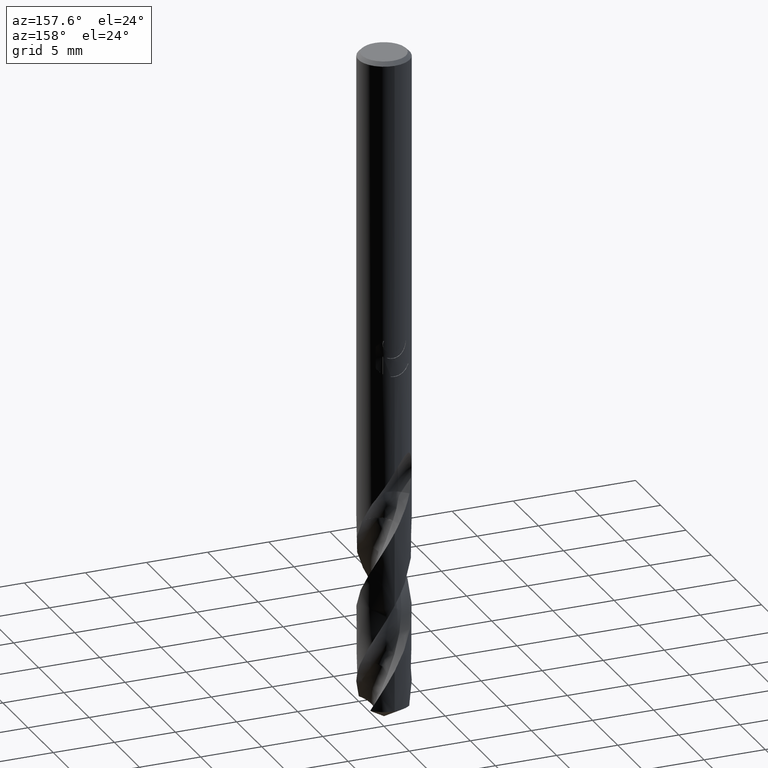
[diagram: clean part render]
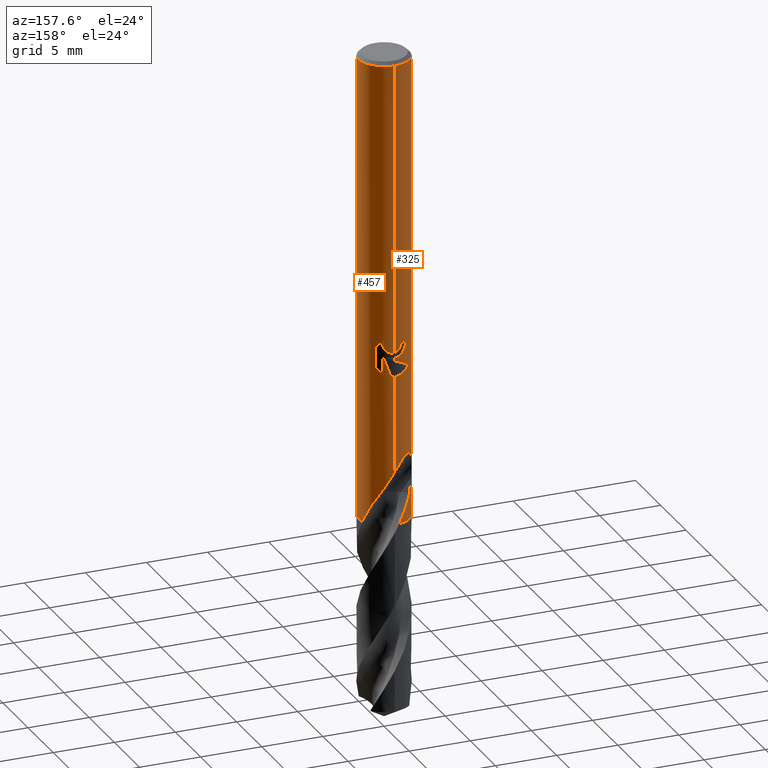
[diagram: same view with one multi-face feature highlighted, each face labeled with its STEP entity id]
A machine part, auxiliary view. The highlighted faces form ONE feature: a constant-radius fillet chain: 2 tangent blend faces with common blend radius 2.1 mm. The faces share edges in the B-rep.
Their STEP definitions:
[1] entity #325 (Cylinder):
#281=VERTEX_POINT('',#774);
#285=VERTEX_POINT('',#778);
#287=EDGE_CURVE('',#467,#303,#780,.T.);
#303=VERTEX_POINT('',#800);
#311=VERTEX_POINT('',#810);
#319=VERTEX_POINT('',#818);
#323=VERTEX_POINT('',#822);
#325=ADVANCED_FACE('',(#824),#825,.T.);
#365=EDGE_CURVE('',#627,#441,#871,.T.);
#415=EDGE_CURVE('',#285,#319,#925,.T.);
#427=VERTEX_POINT('',#938);
#437=EDGE_CURVE('',#319,#467,#948,.T.);
#441=VERTEX_POINT('',#952);
#463=EDGE_CURVE('',#623,#539,#976,.T.);
#467=VERTEX_POINT('',#981);
#471=VERTEX_POINT('',#985);
#483=VERTEX_POINT('',#998);
#499=EDGE_CURVE('',#311,#623,#1015,.T.);
#525=VERTEX_POINT('',#1044);
#529=EDGE_CURVE('',#697,#627,#1048,.T.);
#537=EDGE_CURVE('',#563,#525,#1057,.T.);
#539=VERTEX_POINT('',#1059);
#563=VERTEX_POINT('',#1084);
#569=EDGE_CURVE('',#303,#697,#1090,.T.);
#573=EDGE_CURVE('',#441,#483,#1094,.T.);
#579=EDGE_CURVE('',#525,#471,#1100,.T.);
#591=EDGE_CURVE('',#483,#563,#1112,.T.);
#623=VERTEX_POINT('',#1146);
#625=EDGE_CURVE('',#539,#281,#1148,.T.);
#627=VERTEX_POINT('',#1150);
#665=EDGE_CURVE('',#427,#285,#1194,.T.);
#697=VERTEX_POINT('',#1229);
#715=EDGE_CURVE('',#323,#311,#1247,.T.);
#723=EDGE_CURVE('',#281,#427,#1256,.T.);
#733=EDGE_CURVE('',#323,#471,#1267,.T.);
#774=CARTESIAN_POINT('',(0.0,2.1,-0.300000000000001));
#778=CARTESIAN_POINT('',(-0.486378944383048,2.0428988037739,-23.6432837483006));
#780=B_SPLINE_CURVE_WITH_KNOTS('',3,(#1375,#1376,#1377,#1378,#1379,#1380,#1381,#1382,#1383,#1384,#1385,#1386,#1387,#1388,#1389,#1390,#1391,#1392,#1393,#1394),.UNSPECIFIED.,.F.,.F.,(4,2,2,2,2,2,2,2,2,4),(3.44245235759393,3.66971413200713,3.89807537852471,4.12643662504229,4.58315911807744,5.03339285897156,5.25850972941862,5.48362659986569,5.71673441816734,5.94984223646899),.UNSPECIFIED.);
#800=CARTESIAN_POINT('',(0.0,2.1,-24.5000801551881));
#810=CARTESIAN_POINT('',(-1.33815477037532,-1.61843807744435,-36.1802));
#818=CARTESIAN_POINT('',(-0.562333990228013,2.02330929010723,-23.3171221986971));
#822=CARTESIAN_POINT('',(-2.02251495268167,-0.56518427630204,-38.3));
#824=FACE_OUTER_BOUND('',#2734,.T.);
#825=CYLINDRICAL_SURFACE('',#2735,2.1);
#871=B_SPLINE_CURVE_WITH_KNOTS('',3,(#3377,#3378,#3379,#3380,#3381,#3382,#3383,#3384,#3385,#3386,#3387,#3388,#3389,#3390),.UNSPECIFIED.,.F.,.F.,(4,2,2,2,2,2,4),(6.2236791813652,6.55587058870317,6.87999530281329,7.20412001692342,7.52824473103354,7.85236944514366,8.17313605415779),.UNSPECIFIED.);
#925=B_SPLINE_CURVE_WITH_KNOTS('',3,(#3713,#3714,#3715,#3716,#3717,#3718,#3719,#3720,#3721,#3722,#3723,#3724,#3725,#3726,#3727,#3728,#3729,#3730,#3731,#3732,#3733,#3734,#3735,#3736,#3737,#3738,#3739),.UNSPECIFIED.,.F.,.F.,(4,2,3,2,2,2,2,2,2,2,2,2,4),(-0.547486883548117,-0.273743441774058,0.0,0.273743441774058,0.547486883548117,0.824340682369287,1.10119448119046,1.3723600496363,1.64352561808214,1.91635832268472,2.1891910272873,2.46202373188988,2.73485643649247),.UNSPECIFIED.);
#938=CARTESIAN_POINT('',(-2.60338784749601E-016,2.1,-24.0232688117743));
#948=CIRCLE('',#3888,2.1);
#952=CARTESIAN_POINT('',(-2.17418747032393E-016,2.1,-26.0310253601033));
#976=LINE('',#4087,#4088);
#981=CARTESIAN_POINT('',(-1.0350734039088,1.82718993225134,-23.3171221986971));
#985=CARTESIAN_POINT('',(-0.393009290964015,2.06289691870824,-38.3));
#998=CARTESIAN_POINT('',(-6.18744852988289E-013,2.1,-33.9479410024608));
#1015=B_SPLINE_CURVE_WITH_KNOTS('',3,(#4149,#4150,#4151,#4152,#4153,#4154,#4155,#4156,#4157,#4158,#4159,#4160,#4161,#4162,#4163,#4164,#4165,#4166,#4167,#4168,#4169,#4170,#4171,#4172,#4173,#4174,#4175,#4176),.UNSPECIFIED.,.F.,.F.,(4,2,2,2,2,2,2,2,2,2,2,2,2,4),(0.0,1.02888532896578,1.59067981980449,2.09952440587855,2.69067965646268,3.40079201297187,4.01625864061398,4.29516669491358,4.49901449328071,4.69191413392008,4.93661883013172,5.29463172899718,5.80358915694652,6.38235072285999),.UNSPECIFIED.);
#1044=CARTESIAN_POINT('',(-1.45966241949301,1.50976343217068,-36.1802));
#1048=ELLIPSE('',#4596,2.34134970729001,2.1);
#1057=B_SPLINE_CURVE_WITH_KNOTS('',3,(#4634,#4635,#4636,#4637),.UNSPECIFIED.,.F.,.F.,(4,4),(0.0,1.20691179115769),.UNSPECIFIED.);
#1059=CARTESIAN_POINT('',(2.57167334302699E-016,-2.1,-0.300000000000001));
#1084=CARTESIAN_POINT('',(-1.70864854291025,1.22086860751298,-35.0302815210883));
#1090=LINE('',#4816,#4817);
#1094=LINE('',#4836,#4837);
#1100=B_SPLINE_CURVE_WITH_KNOTS('',3,(#4854,#4855,#4856,#4857,#4858,#4859,#4860,#4861),.UNSPECIFIED.,.F.,.F.,(4,2,2,4),(0.0,0.507593382815486,0.963422555044344,2.20962213593458),.UNSPECIFIED.);
#1112=B_SPLINE_CURVE_WITH_KNOTS('',3,(#4936,#4937,#4938,#4939,#4940,#4941,#4942,#4943,#4944,#4945,#4946,#4947,#4948,#4949,#4950,#4951,#4952,#4953,#4954,#4955,#4956,#4957,#4958,#4959,#4960,#4961,#4962,#4963),.UNSPECIFIED.,.F.,.F.,(4,2,2,2,2,2,2,2,2,2,2,2,2,4),(0.0,1.02888532896577,1.59067981980442,2.09952440587844,2.69067965646283,3.40079201297238,4.01625864061483,4.29516669491445,4.49901449328158,4.69191413392099,4.93661883013278,5.29463172899841,5.80358915694843,6.38235072286298),.UNSPECIFIED.);
#1146=CARTESIAN_POINT('',(6.23962901204027E-013,-2.1,-33.9479410024607));
#1148=CIRCLE('',#5210,2.1);
#1150=CARTESIAN_POINT('',(-1.337052752443,1.61934861508713,-25.3720803908795));
#1194=B_SPLINE_CURVE_WITH_KNOTS('',3,(#6290,#6291,#6292,#6293,#6294,#6295,#6296,#6297,#6298,#6299,#6300,#6301,#6302,#6303,#6304,#6305,#6306,#6307,#6308,#6309,#6310,#6311,#6312,#6313,#6314,#6315,#6316),.UNSPECIFIED.,.F.,.F.,(4,2,3,2,2,2,2,2,2,2,2,2,4),(-0.547486883548117,-0.273743441774058,0.0,0.273743441774058,0.547486883548117,0.824340682369287,1.10119448119046,1.3723600496363,1.64352561808214,1.91635832268472,2.1891910272873,2.46202373188988,2.73485643649247),.UNSPECIFIED.);
#1229=CARTESIAN_POINT('',(-2.57167334302699E-016,2.1,-24.7128911336578));
#1247=B_SPLINE_CURVE_WITH_KNOTS('',3,(#6547,#6548,#6549,#6550,#6551,#6552,#6553,#6554),.UNSPECIFIED.,.F.,.F.,(4,2,2,4),(0.0,1.24536084451384,2.05906868394917,3.64052375906592),.UNSPECIFIED.);
#1256=LINE('',#6566,#6567);
#1267=CIRCLE('',#6653,2.1);
#1375=CARTESIAN_POINT('',(-1.01244514746577,1.83982467191116,-23.0958412503617));
#1376=CARTESIAN_POINT('',(-1.0277194156161,1.83141932843821,-23.1727494274563));
#1377=CARTESIAN_POINT('',(-1.03510901790186,1.82716975704455,-23.2505479359284));
#1378=CARTESIAN_POINT('',(-1.03510901790186,1.82716975704455,-23.4024222762386));
#1379=CARTESIAN_POINT('',(-1.02764805011968,1.83146088002703,-23.4805792435279));
#1380=CARTESIAN_POINT('',(-0.996821623233596,1.84841989816034,-23.6350585553046));
#1381=CARTESIAN_POINT('',(-0.973469174635286,1.86105595241941,-23.7113869896211));
#1382=CARTESIAN_POINT('',(-0.881725044411464,1.90715655609605,-23.9299317026801));
#1383=CARTESIAN_POINT('',(-0.790532309968498,1.94868728807658,-24.0616569596424));
#1384=CARTESIAN_POINT('',(-0.582166475037412,2.0206578132057,-24.2685398871852));
#1385=CARTESIAN_POINT('',(-0.450812194775423,2.05627536214621,-24.3586750603355));
#1386=CARTESIAN_POINT('',(-0.233212600470114,2.08829760462997,-24.4490326341542));
#1387=CARTESIAN_POINT('',(-0.157287900701515,2.09550316953132,-24.4719737155572));
#1388=CARTESIAN_POINT('',(-0.00412991297262745,2.10139381388734,-24.5021454938052));
#1389=CARTESIAN_POINT('',(0.0731052752199256,2.10006820455313,-24.5093686300866));
#1390=CARTESIAN_POINT('',(0.225467257488821,2.08930663398059,-24.5093686300866));
#1391=CARTESIAN_POINT('',(0.304700531040774,2.07928928619,-24.501633853454));
#1392=CARTESIAN_POINT('',(0.460618703219946,2.05039429365853,-24.4700748807234));
#1393=CARTESIAN_POINT('',(0.5373083764591,2.03152615423531,-24.4462655734621));
#1394=CARTESIAN_POINT('',(0.610172878985177,2.00940017362171,-24.4153400403338));
#2734=EDGE_LOOP('',(#6920,#6921,#6922,#6923,#6924,#6925,#6926,#6927,#6928,#6929,#6930,#6931,#6932,#6933,#6934,#6935,#6936));
#2735=AXIS2_PLACEMENT_3D('',#6937,#6938,#6939);
#3377=CARTESIAN_POINT('',(-1.37634745487212,1.58608564821293,-25.3166558378059));
#3378=CARTESIAN_POINT('',(-1.31787524086667,1.63682570971602,-25.4028872848481));
#3379=CARTESIAN_POINT('',(-1.25189718961466,1.68820084151887,-25.4821776042087));
#3380=CARTESIAN_POINT('',(-1.11263821810976,1.78296273742365,-25.6217782046261));
#3381=CARTESIAN_POINT('',(-1.03440325687689,1.83012565693818,-25.6876600944075));
#3382=CARTESIAN_POINT('',(-0.861844859223899,1.91743929675964,-25.8057416776482));
#3383=CARTESIAN_POINT('',(-0.767506845901151,1.95755704477349,-25.8579444472577));
#3384=CARTESIAN_POINT('',(-0.567758594908759,2.02453614883448,-25.9431892571598));
#3385=CARTESIAN_POINT('',(-0.462122116208028,2.051441729542,-25.97630247802));
#3386=CARTESIAN_POINT('',(-0.246443350285201,2.08835717616504,-26.020354143173));
#3387=CARTESIAN_POINT('',(-0.136393886524362,2.09834927713736,-26.0312723335086));
#3388=CARTESIAN_POINT('',(0.0785502815617808,2.10125253379073,-26.0312723335086));
#3389=CARTESIAN_POINT('',(0.187753769356181,2.09439313010985,-26.0205746135546));
#3390=CARTESIAN_POINT('',(0.295003482813938,2.07917602552734,-25.9988480127898));
#3713=CARTESIAN_POINT('',(0.666458482238536,1.99143995426734,-22.8149370306263));
#3714=CARTESIAN_POINT('',(0.729057257127367,1.97049054807862,-22.8779344854065));
#3715=CARTESIAN_POINT('',(0.78378811914031,1.94865511636272,-22.9577429205161));
#3716=CARTESIAN_POINT('',(0.856983777968947,1.91759210564186,-23.1339210750639));
#3717=CARTESIAN_POINT('',(0.875400981188567,1.90884077967077,-23.2303941986621));
#3718=CARTESIAN_POINT('',(0.875400981188567,1.90884077967077,-23.3216420125868));
#3719=CARTESIAN_POINT('',(0.875400981188567,1.90884077967077,-23.4128898265115));
#3720=CARTESIAN_POINT('',(0.856983777968945,1.91759210564186,-23.5093629501097));
#3721=CARTESIAN_POINT('',(0.783788119140307,1.94865511636272,-23.6855411046574));
#3722=CARTESIAN_POINT('',(0.729057257127368,1.97049054807862,-23.765349539767));
#3723=CARTESIAN_POINT('',(0.603148440846462,2.01262739404237,-23.8920602457541));
#3724=CARTESIAN_POINT('',(0.52291830652937,2.03586892363889,-23.9475581518068));
#3725=CARTESIAN_POINT('',(0.345662776470217,2.07333621875243,-24.0218144874727));
#3726=CARTESIAN_POINT('',(0.248554282106599,2.08727986052927,-24.0405166027747));
#3727=CARTESIAN_POINT('',(0.0663893023608441,2.10089565318908,-24.0405166027747));
#3728=CARTESIAN_POINT('',(-0.0298354346062466,2.10165355609278,-24.0224982400753));
#3729=CARTESIAN_POINT('',(-0.206617574437343,2.09168520610069,-23.949381318464));
#3730=CARTESIAN_POINT('',(-0.287200738976719,2.08126758963178,-23.8943032978026));
#3731=CARTESIAN_POINT('',(-0.414760776704933,2.05965624300593,-23.767248366845));
#3732=CARTESIAN_POINT('',(-0.470244550788805,2.04702617545092,-23.686553093691));
#3733=CARTESIAN_POINT('',(-0.544049387122763,2.02865877404118,-23.5092464433082));
#3734=CARTESIAN_POINT('',(-0.562348199187247,2.02330534098807,-23.4125862474543));
#3735=CARTESIAN_POINT('',(-0.562348199187247,2.02330534098807,-23.2306977777193));
#3736=CARTESIAN_POINT('',(-0.544049387122763,2.02865877404118,-23.1340375818654));
#3737=CARTESIAN_POINT('',(-0.470244550788805,2.04702617545092,-22.9567309314826));
#3738=CARTESIAN_POINT('',(-0.414760776704934,2.05965624300593,-22.8760356583286));
#3739=CARTESIAN_POINT('',(-0.350785297706495,2.0704950313664,-22.8123135066901));
#3888=AXIS2_PLACEMENT_3D('',#7064,#7065,#7066);
#4087=CARTESIAN_POINT('',(2.57167334302699E-016,-2.1,-33.15));
#4088=VECTOR('',#7099,1.0);
#4149=CARTESIAN_POINT('',(-1.33815477037532,-1.61843807744435,-36.1802));
#4150=CARTESIAN_POINT('',(-1.19963090189851,-1.73297219400802,-35.8881112223602));
#4151=CARTESIAN_POINT('',(-1.04035972081438,-1.834785085847,-35.6157904295779));
#4152=CARTESIAN_POINT('',(-0.762638208962339,-1.95957807725862,-35.1608597650517));
#4153=CARTESIAN_POINT('',(-0.662701086433434,-1.99547625780557,-35.0008000391549));
#4154=CARTESIAN_POINT('',(-0.469235431953876,-2.04912734544822,-34.6909657977839));
#4155=CARTESIAN_POINT('',(-0.376570734134232,-2.06808215024568,-34.5426354971455));
#4156=CARTESIAN_POINT('',(-0.175990679085837,-2.09543863683843,-34.2229442145823));
#4157=CARTESIAN_POINT('',(-0.0663998889054547,-2.10186119944241,-34.0490808548331));
#4158=CARTESIAN_POINT('',(0.176973125026402,-2.09674199259401,-33.677129812363));
#4159=CARTESIAN_POINT('',(0.321268696880061,-2.08090824141791,-33.465485616075));
#4160=CARTESIAN_POINT('',(0.599524068126656,-2.01696391842214,-33.116498906123));
#4161=CARTESIAN_POINT('',(0.7534716760137,-1.96824639555499,-32.9462069951458));
#4162=CARTESIAN_POINT('',(0.98646980318537,-1.8556373455113,-32.7867458653066));
#4163=CARTESIAN_POINT('',(1.06359366909528,-1.81312487038635,-32.7473366637846));
#4164=CARTESIAN_POINT('',(1.19873242122968,-1.72559062949754,-32.7170633184468));
#4165=CARTESIAN_POINT('',(1.25416041542417,-1.68572687573651,-32.7164980346548));
#4166=CARTESIAN_POINT('',(1.3573980505889,-1.60361585924015,-32.7429934880568));
#4167=CARTESIAN_POINT('',(1.40254904203296,-1.5639578749058,-32.767835336699));
#4168=CARTESIAN_POINT('',(1.49443080912874,-1.47705049532201,-32.8455626312415));
#4169=CARTESIAN_POINT('',(1.53693947345426,-1.43201290614732,-32.9029502600879));
#4170=CARTESIAN_POINT('',(1.62401096383942,-1.33367002680633,-33.0600954158963));
#4171=CARTESIAN_POINT('',(1.66562940042639,-1.28011528983812,-33.1766506863448));
#4172=CARTESIAN_POINT('',(1.74389133327145,-1.17257804110451,-33.5027593615221));
#4173=CARTESIAN_POINT('',(1.7721848346708,-1.12677233329937,-33.7350095812939));
#4174=CARTESIAN_POINT('',(1.79027549176488,-1.09783577125529,-34.290276149154));
#4175=CARTESIAN_POINT('',(1.7774570783939,-1.12456864274165,-34.6389185240585));
#4176=CARTESIAN_POINT('',(1.70864854291025,-1.22086860751298,-35.0302815210883));
#4596=AXIS2_PLACEMENT_3D('',#7158,#7159,#7160);
#4634=CARTESIAN_POINT('',(-1.70864854296286,1.22086860743934,-35.0302815211173));
#4635=CARTESIAN_POINT('',(-1.64094627385653,1.31562031352706,-35.4153619923895));
#4636=CARTESIAN_POINT('',(-1.55934694363187,1.41338690682238,-35.8027340616366));
#4637=CARTESIAN_POINT('',(-1.45966241949301,1.50976343217068,-36.1802));
#4816=CARTESIAN_POINT('',(-2.57167334302699E-016,2.1,-33.15));
#4817=VECTOR('',#7200,1.0);
#4836=CARTESIAN_POINT('',(-2.57167334302699E-016,2.1,-33.15));
#4837=VECTOR('',#7201,1.0);
#4854=CARTESIAN_POINT('',(-1.45966241949301,1.50976343217068,-36.1802));
#4855=CARTESIAN_POINT('',(-1.40199727783578,1.56551497469598,-36.32917781892));
#4856=CARTESIAN_POINT('',(-1.33928548005667,1.61998597551167,-36.4792455753143));
#4857=CARTESIAN_POINT('',(-1.20361034611491,1.72273214507769,-36.7705115337178));
#4858=CARTESIAN_POINT('',(-1.13527988959609,1.76883534095848,-36.9085708864237));
#4859=CARTESIAN_POINT('',(-0.853542040764799,1.93353598549568,-37.4701929239469));
#4860=CARTESIAN_POINT('',(-0.627895218683887,2.01814802647158,-37.8861008632337));
#4861=CARTESIAN_POINT('',(-0.39300929096402,2.06289691870824,-38.3));
#4936=CARTESIAN_POINT('',(1.33815477037532,1.61843807744435,-36.1802));
#4937=CARTESIAN_POINT('',(1.19963090189851,1.73297219400802,-35.8881112223602));
#4938=CARTESIAN_POINT('',(1.04035972081438,1.834785085847,-35.6157904295779));
#4939=CARTESIAN_POINT('',(0.76263820896235,1.95957807725861,-35.1608597650517));
#4940=CARTESIAN_POINT('',(0.662701086433457,1.99547625780557,-35.0008000391549));
#4941=CARTESIAN_POINT('',(0.469235431953853,2.04912734544822,-34.6909657977839));
#4942=CARTESIAN_POINT('',(0.376570734134182,2.06808215024568,-34.5426354971455));
#4943=CARTESIAN_POINT('',(0.175990679085838,2.09543863683843,-34.2229442145823));
#4944=CARTESIAN_POINT('',(0.0663998889054543,2.10186119944241,-34.0490808548331));
#4945=CARTESIAN_POINT('',(-0.176973125026412,2.096741992594,-33.677129812363));
#4946=CARTESIAN_POINT('',(-0.321268696880063,2.0809082414179,-33.465485616075));
#4947=CARTESIAN_POINT('',(-0.59952406812666,2.01696391842214,-33.116498906123));
#4948=CARTESIAN_POINT('',(-0.753471676013701,1.96824639555499,-32.9462069951458));
#4949=CARTESIAN_POINT('',(-0.986469803185335,1.85563734551132,-32.7867458653066));
#4950=CARTESIAN_POINT('',(-1.06359366909527,1.81312487038636,-32.7473366637846));
#4951=CARTESIAN_POINT('',(-1.19873242122968,1.72559062949754,-32.7170633184468));
#4952=CARTESIAN_POINT('',(-1.25416041542417,1.68572687573651,-32.7164980346548));
#4953=CARTESIAN_POINT('',(-1.35739805058891,1.60361585924014,-32.7429934880568));
#4954=CARTESIAN_POINT('',(-1.40254904203298,1.56395787490578,-32.767835336699));
#4955=CARTESIAN_POINT('',(-1.49443080912873,1.47705049532202,-32.8455626312414));
#4956=CARTESIAN_POINT('',(-1.53693947345424,1.43201290614734,-32.9029502600879));
#4957=CARTESIAN_POINT('',(-1.62401096383944,1.3336700268063,-33.0600954158963));
#4958=CARTESIAN_POINT('',(-1.6656294004264,1.2801152898381,-33.1766506863449));
#4959=CARTESIAN_POINT('',(-1.74389133327146,1.17257804110449,-33.5027593615222));
#4960=CARTESIAN_POINT('',(-1.7721848346708,1.12677233329937,-33.735009581294));
#4961=CARTESIAN_POINT('',(-1.79027549176488,1.09783577125529,-34.2902761491541));
#4962=CARTESIAN_POINT('',(-1.77745707839389,1.12456864274167,-34.6389185240586));
#4963=CARTESIAN_POINT('',(-1.70864854291025,1.22086860751298,-35.0302815210883));
#5210=AXIS2_PLACEMENT_3D('',#7223,#7224,#7225);
#6290=CARTESIAN_POINT('',(0.666458482238536,1.99143995426734,-22.8149370306263));
#6291=CARTESIAN_POINT('',(0.729057257127367,1.97049054807862,-22.8779344854065));
#6292=CARTESIAN_POINT('',(0.78378811914031,1.94865511636272,-22.9577429205161));
#6293=CARTESIAN_POINT('',(0.856983777968947,1.91759210564186,-23.1339210750639));
#6294=CARTESIAN_POINT('',(0.875400981188567,1.90884077967077,-23.2303941986621));
#6295=CARTESIAN_POINT('',(0.875400981188567,1.90884077967077,-23.3216420125868));
#6296=CARTESIAN_POINT('',(0.875400981188567,1.90884077967077,-23.4128898265115));
#6297=CARTESIAN_POINT('',(0.856983777968945,1.91759210564186,-23.5093629501097));
#6298=CARTESIAN_POINT('',(0.783788119140307,1.94865511636272,-23.6855411046574));
#6299=CARTESIAN_POINT('',(0.729057257127368,1.97049054807862,-23.765349539767));
#6300=CARTESIAN_POINT('',(0.603148440846462,2.01262739404237,-23.8920602457541));
#6301=CARTESIAN_POINT('',(0.52291830652937,2.03586892363889,-23.9475581518068));
#6302=CARTESIAN_POINT('',(0.345662776470217,2.07333621875243,-24.0218144874727));
#6303=CARTESIAN_POINT('',(0.248554282106599,2.08727986052927,-24.0405166027747));
#6304=CARTESIAN_POINT('',(0.0663893023608441,2.10089565318908,-24.0405166027747));
#6305=CARTESIAN_POINT('',(-0.0298354346062466,2.10165355609278,-24.0224982400753));
#6306=CARTESIAN_POINT('',(-0.206617574437343,2.09168520610069,-23.949381318464));
#6307=CARTESIAN_POINT('',(-0.287200738976719,2.08126758963178,-23.8943032978026));
#6308=CARTESIAN_POINT('',(-0.414760776704933,2.05965624300593,-23.767248366845));
#6309=CARTESIAN_POINT('',(-0.470244550788805,2.04702617545092,-23.686553093691));
#6310=CARTESIAN_POINT('',(-0.544049387122763,2.02865877404118,-23.5092464433082));
#6311=CARTESIAN_POINT('',(-0.562348199187247,2.02330534098807,-23.4125862474543));
#6312=CARTESIAN_POINT('',(-0.562348199187247,2.02330534098807,-23.2306977777193));
#6313=CARTESIAN_POINT('',(-0.544049387122763,2.02865877404118,-23.1340375818654));
#6314=CARTESIAN_POINT('',(-0.470244550788805,2.04702617545092,-22.9567309314826));
#6315=CARTESIAN_POINT('',(-0.414760776704934,2.05965624300593,-22.8760356583286));
#6316=CARTESIAN_POINT('',(-0.350785297706495,2.0704950313664,-22.8123135066901));
#6547=CARTESIAN_POINT('',(-2.02251495268167,-0.565184276302042,-38.3));
#6548=CARTESIAN_POINT('',(-1.96671785135952,-0.764854501522574,-37.940356658951));
#6549=CARTESIAN_POINT('',(-1.88418592833998,-0.949897187140451,-37.6064049169185));
#6550=CARTESIAN_POINT('',(-1.70183679515044,-1.23769103387922,-36.9961769217155));
#6551=CARTESIAN_POINT('',(-1.63942891825156,-1.31351367678905,-36.8085724274032));
#6552=CARTESIAN_POINT('',(-1.53456721804123,-1.43756966949237,-36.5190914422499));
#6553=CARTESIAN_POINT('',(-1.44814190512114,-1.52749866425875,-36.345444376352));
#6554=CARTESIAN_POINT('',(-1.33815477037532,-1.61843807744435,-36.1802));
#6566=CARTESIAN_POINT('',(-2.57167334302699E-016,2.1,-33.15));
#6567=VECTOR('',#7342,1.0);
#6653=AXIS2_PLACEMENT_3D('',#7352,#7353,#7354);
#6920=ORIENTED_EDGE('',*,*,#723,.T.);
#6921=ORIENTED_EDGE('',*,*,#665,.T.);
#6922=ORIENTED_EDGE('',*,*,#415,.T.);
#6923=ORIENTED_EDGE('',*,*,#437,.T.);
#6924=ORIENTED_EDGE('',*,*,#287,.T.);
#6925=ORIENTED_EDGE('',*,*,#569,.T.);
#6926=ORIENTED_EDGE('',*,*,#529,.T.);
#6927=ORIENTED_EDGE('',*,*,#365,.T.);
#6928=ORIENTED_EDGE('',*,*,#573,.T.);
#6929=ORIENTED_EDGE('',*,*,#591,.T.);
#6930=ORIENTED_EDGE('',*,*,#537,.T.);
#6931=ORIENTED_EDGE('',*,*,#579,.T.);
#6932=ORIENTED_EDGE('',*,*,#733,.F.);
#6933=ORIENTED_EDGE('',*,*,#715,.T.);
#6934=ORIENTED_EDGE('',*,*,#499,.T.);
#6935=ORIENTED_EDGE('',*,*,#463,.T.);
#6936=ORIENTED_EDGE('',*,*,#625,.T.);
#6937=CARTESIAN_POINT('',(0.0,0.0,-33.15));
#6938=DIRECTION('',(-0.0,-0.0,1.0));
#6939=DIRECTION('',(0.0,1.0,0.0));
#7064=CARTESIAN_POINT('',(0.0,0.0,-23.3171221986971));
#7065=DIRECTION('',(0.0,-0.0,1.0));
#7066=DIRECTION('',(0.0,1.0,0.0));
#7099=DIRECTION('',(-0.0,-0.0,1.0));
#7158=CARTESIAN_POINT('',(0.0,0.0,-24.7128911336578));
#7159=DIRECTION('',(-0.442195774284071,0.0,0.896918556617774));
#7160=DIRECTION('',(0.896918556617774,-0.0,0.442195774284071));
#7200=DIRECTION('',(0.0,0.0,-1.0));
#7201=DIRECTION('',(0.0,0.0,-1.0));
#7223=CARTESIAN_POINT('',(0.0,0.0,-0.300000000000001));
#7224=DIRECTION('',(0.0,0.0,-1.0));
#7225=DIRECTION('',(0.0,1.0,0.0));
#7342=DIRECTION('',(0.0,0.0,-1.0));
#7352=CARTESIAN_POINT('',(0.0,0.0,-38.3));
#7353=DIRECTION('',(0.0,0.0,-1.0));
#7354=DIRECTION('',(0.0,1.0,0.0));
[2] entity #457 (Cylinder):
#281=VERTEX_POINT('',#774);
#283=VERTEX_POINT('',#776);
#333=EDGE_CURVE('',#335,#427,#835,.T.);
#335=VERTEX_POINT('',#837);
#369=VERTEX_POINT('',#875);
#375=EDGE_CURVE('',#583,#557,#882,.T.);
#407=VERTEX_POINT('',#917);
#411=EDGE_CURVE('',#623,#583,#921,.T.);
#413=EDGE_CURVE('',#281,#539,#923,.T.);
#423=EDGE_CURVE('',#635,#407,#934,.T.);
#427=VERTEX_POINT('',#938);
#441=VERTEX_POINT('',#952);
#457=ADVANCED_FACE('',(#969),#970,.T.);
#463=EDGE_CURVE('',#623,#539,#976,.T.);
#483=VERTEX_POINT('',#998);
#503=EDGE_CURVE('',#699,#283,#1020,.T.);
#507=EDGE_CURVE('',#369,#335,#1024,.T.);
#513=VERTEX_POINT('',#1030);
#523=EDGE_CURVE('',#513,#601,#1042,.T.);
#539=VERTEX_POINT('',#1059);
#543=EDGE_CURVE('',#567,#483,#1063,.T.);
#547=EDGE_CURVE('',#601,#369,#1068,.T.);
#557=VERTEX_POINT('',#1078);
#567=VERTEX_POINT('',#1088);
#573=EDGE_CURVE('',#441,#483,#1094,.T.);
#575=EDGE_CURVE('',#283,#513,#1096,.T.);
#577=EDGE_CURVE('',#635,#567,#1098,.T.);
#583=VERTEX_POINT('',#1104);
#593=EDGE_CURVE('',#441,#699,#1114,.T.);
#601=VERTEX_POINT('',#1122);
#623=VERTEX_POINT('',#1146);
#635=VERTEX_POINT('',#1160);
#699=VERTEX_POINT('',#1231);
#711=EDGE_CURVE('',#557,#407,#1243,.T.);
#723=EDGE_CURVE('',#281,#427,#1256,.T.);
#774=CARTESIAN_POINT('',(0.0,2.1,-0.300000000000001));
#776=CARTESIAN_POINT('',(0.873560781758957,1.90968362839835,-24.3198931596091));
#835=B_SPLINE_CURVE_WITH_KNOTS('',3,(#2750,#2751,#2752,#2753,#2754,#2755,#2756,#2757,#2758,#2759,#2760,#2761,#2762,#2763,#2764,#2765,#2766,#2767,#2768,#2769,#2770,#2771,#2772,#2773,#2774,#2775,#2776),.UNSPECIFIED.,.F.,.F.,(4,2,3,2,2,2,2,2,2,2,2,2,4),(-0.547486883548117,-0.273743441774058,0.0,0.273743441774058,0.547486883548117,0.824340682369287,1.10119448119046,1.3723600496363,1.64352561808214,1.91635832268472,2.1891910272873,2.46202373188988,2.73485643649247),.UNSPECIFIED.);
#837=CARTESIAN_POINT('',(0.799431726384364,1.94188282727103,-23.000000276873));
#875=CARTESIAN_POINT('',(1.33721006514658,1.61921871335243,-23.5150484364821));
#882=B_SPLINE_CURVE_WITH_KNOTS('',3,(#3402,#3403,#3404,#3405),.UNSPECIFIED.,.F.,.F.,(4,4),(0.0,1.20691179115764),.UNSPECIFIED.);
#917=CARTESIAN_POINT('',(0.393009290964003,-2.06289691870824,-38.3));
#921=B_SPLINE_CURVE_WITH_KNOTS('',3,(#3680,#3681,#3682,#3683,#3684,#3685,#3686,#3687,#3688,#3689,#3690,#3691,#3692,#3693,#3694,#3695,#3696,#3697,#3698,#3699,#3700,#3701,#3702,#3703,#3704,#3705,#3706,#3707),.UNSPECIFIED.,.F.,.F.,(4,2,2,2,2,2,2,2,2,2,2,2,2,4),(0.0,1.02888532896578,1.59067981980449,2.09952440587855,2.69067965646268,3.40079201297187,4.01625864061398,4.29516669491358,4.49901449328071,4.69191413392008,4.93661883013172,5.29463172899718,5.80358915694652,6.38235072285999),.UNSPECIFIED.);
#923=CIRCLE('',#3710,2.1);
#934=CIRCLE('',#3770,2.1);
#938=CARTESIAN_POINT('',(-2.60338784749601E-016,2.1,-24.0232688117743));
#952=CARTESIAN_POINT('',(-2.17418747032393E-016,2.1,-26.0310253601033));
#969=FACE_OUTER_BOUND('',#4077,.T.);
#970=CYLINDRICAL_SURFACE('',#4078,2.1);
#976=LINE('',#4087,#4088);
#998=CARTESIAN_POINT('',(-6.18744852988289E-013,2.1,-33.9479410024608));
#1020=ELLIPSE('',#4337,6.40078860407652,2.1);
#1024=B_SPLINE_CURVE_WITH_KNOTS('',3,(#4396,#4397,#4398,#4399,#4400,#4401,#4402,#4403),.UNSPECIFIED.,.F.,.F.,(4,2,2,4),(0.65938695715018,1.31877391430036,1.63954049134892,1.96030706839748),.UNSPECIFIED.);
#1030=CARTESIAN_POINT('',(0.873560781758956,1.90968362839835,-25.7587351791531));
#1042=B_SPLINE_CURVE_WITH_KNOTS('',3,(#4582,#4583,#4584,#4585,#4586,#4587,#4588,#4589),.UNSPECIFIED.,.F.,.F.,(4,2,2,4),(8.49386140966178,8.81462797691423,9.13539454416668,9.79478147635395),.UNSPECIFIED.);
#1059=CARTESIAN_POINT('',(2.57167334302699E-016,-2.1,-0.300000000000001));
#1063=B_SPLINE_CURVE_WITH_KNOTS('',3,(#4644,#4645,#4646,#4647,#4648,#4649,#4650,#4651,#4652,#4653,#4654,#4655,#4656,#4657,#4658,#4659,#4660,#4661,#4662,#4663,#4664,#4665,#4666,#4667,#4668,#4669,#4670,#4671),.UNSPECIFIED.,.F.,.F.,(4,2,2,2,2,2,2,2,2,2,2,2,2,4),(0.0,1.02888532896577,1.59067981980442,2.09952440587844,2.69067965646283,3.40079201297238,4.01625864061483,4.29516669491445,4.49901449328158,4.69191413392099,4.93661883013278,5.29463172899841,5.80358915694843,6.38235072286298),.UNSPECIFIED.);
#1068=LINE('',#4677,#4678);
#1078=CARTESIAN_POINT('',(1.45966241949302,-1.50976343217068,-36.1802));
#1088=CARTESIAN_POINT('',(1.33815477037532,1.61843807744435,-36.1802));
#1094=LINE('',#4836,#4837);
#1096=LINE('',#4840,#4841);
#1098=B_SPLINE_CURVE_WITH_KNOTS('',3,(#4844,#4845,#4846,#4847,#4848,#4849,#4850,#4851),.UNSPECIFIED.,.F.,.F.,(4,2,2,4),(0.0,1.24536084476261,2.05906868448681,3.64052376014437),.UNSPECIFIED.);
#1104=CARTESIAN_POINT('',(1.70864854291025,-1.22086860751298,-35.0302815210883));
#1114=B_SPLINE_CURVE_WITH_KNOTS('',3,(#4966,#4967,#4968,#4969,#4970,#4971,#4972,#4973,#4974,#4975,#4976,#4977,#4978,#4979),.UNSPECIFIED.,.F.,.F.,(4,2,2,2,2,2,4),(6.2236791813652,6.55587058870317,6.87999530281329,7.20412001692342,7.52824473103354,7.85236944514366,8.17313605415779),.UNSPECIFIED.);
#1122=CARTESIAN_POINT('',(1.33721006514658,1.61921871335242,-25.2901657003257));
#1146=CARTESIAN_POINT('',(6.23962901204027E-013,-2.1,-33.9479410024607));
#1160=CARTESIAN_POINT('',(2.02251495268167,0.565184276302028,-38.3));
#1231=CARTESIAN_POINT('',(0.29010312703583,2.07986542249349,-25.9998328990228));
#1243=B_SPLINE_CURVE_WITH_KNOTS('',3,(#6531,#6532,#6533,#6534,#6535,#6536,#6537,#6538),.UNSPECIFIED.,.F.,.F.,(4,2,2,4),(0.0,0.507593382525981,0.963422552685993,2.20962213735448),.UNSPECIFIED.);
#1256=LINE('',#6566,#6567);
#2750=CARTESIAN_POINT('',(0.666458482238536,1.99143995426734,-22.8149370306263));
#2751=CARTESIAN_POINT('',(0.729057257127367,1.97049054807862,-22.8779344854065));
#2752=CARTESIAN_POINT('',(0.78378811914031,1.94865511636272,-22.9577429205161));
#2753=CARTESIAN_POINT('',(0.856983777968947,1.91759210564186,-23.1339210750639));
#2754=CARTESIAN_POINT('',(0.875400981188567,1.90884077967077,-23.2303941986621));
#2755=CARTESIAN_POINT('',(0.875400981188567,1.90884077967077,-23.3216420125868));
#2756=CARTESIAN_POINT('',(0.875400981188567,1.90884077967077,-23.4128898265115));
#2757=CARTESIAN_POINT('',(0.856983777968945,1.91759210564186,-23.5093629501097));
#2758=CARTESIAN_POINT('',(0.783788119140307,1.94865511636272,-23.6855411046574));
#2759=CARTESIAN_POINT('',(0.729057257127368,1.97049054807862,-23.765349539767));
#2760=CARTESIAN_POINT('',(0.603148440846462,2.01262739404237,-23.8920602457541));
#2761=CARTESIAN_POINT('',(0.52291830652937,2.03586892363889,-23.9475581518068));
#2762=CARTESIAN_POINT('',(0.345662776470217,2.07333621875243,-24.0218144874727));
#2763=CARTESIAN_POINT('',(0.248554282106599,2.08727986052927,-24.0405166027747));
#2764=CARTESIAN_POINT('',(0.0663893023608441,2.10089565318908,-24.0405166027747));
#2765=CARTESIAN_POINT('',(-0.0298354346062466,2.10165355609278,-24.0224982400753));
#2766=CARTESIAN_POINT('',(-0.206617574437343,2.09168520610069,-23.949381318464));
#2767=CARTESIAN_POINT('',(-0.287200738976719,2.08126758963178,-23.8943032978026));
#2768=CARTESIAN_POINT('',(-0.414760776704933,2.05965624300593,-23.767248366845));
#2769=CARTESIAN_POINT('',(-0.470244550788805,2.04702617545092,-23.686553093691));
#2770=CARTESIAN_POINT('',(-0.544049387122763,2.02865877404118,-23.5092464433082));
#2771=CARTESIAN_POINT('',(-0.562348199187247,2.02330534098807,-23.4125862474543));
#2772=CARTESIAN_POINT('',(-0.562348199187247,2.02330534098807,-23.2306977777193));
#2773=CARTESIAN_POINT('',(-0.544049387122763,2.02865877404118,-23.1340375818654));
#2774=CARTESIAN_POINT('',(-0.470244550788805,2.04702617545092,-22.9567309314826));
#2775=CARTESIAN_POINT('',(-0.414760776704934,2.05965624300593,-22.8760356583286));
#2776=CARTESIAN_POINT('',(-0.350785297706495,2.0704950313664,-22.8123135066901));
#3402=CARTESIAN_POINT('',(1.70864854296287,-1.22086860743934,-35.0302815211173));
#3403=CARTESIAN_POINT('',(1.64094627385653,-1.31562031352706,-35.4153619923895));
#3404=CARTESIAN_POINT('',(1.55934694363188,-1.41338690682238,-35.8027340616366));
#3405=CARTESIAN_POINT('',(1.45966241949302,-1.50976343217068,-36.1802));
#3680=CARTESIAN_POINT('',(-1.33815477037532,-1.61843807744435,-36.1802));
#3681=CARTESIAN_POINT('',(-1.19963090189851,-1.73297219400802,-35.8881112223602));
#3682=CARTESIAN_POINT('',(-1.04035972081438,-1.834785085847,-35.6157904295779));
#3683=CARTESIAN_POINT('',(-0.762638208962339,-1.95957807725862,-35.1608597650517));
#3684=CARTESIAN_POINT('',(-0.662701086433434,-1.99547625780557,-35.0008000391549));
#3685=CARTESIAN_POINT('',(-0.469235431953876,-2.04912734544822,-34.6909657977839));
#3686=CARTESIAN_POINT('',(-0.376570734134232,-2.06808215024568,-34.5426354971455));
#3687=CARTESIAN_POINT('',(-0.175990679085837,-2.09543863683843,-34.2229442145823));
#3688=CARTESIAN_POINT('',(-0.0663998889054547,-2.10186119944241,-34.0490808548331));
#3689=CARTESIAN_POINT('',(0.176973125026402,-2.09674199259401,-33.677129812363));
#3690=CARTESIAN_POINT('',(0.321268696880061,-2.08090824141791,-33.465485616075));
#3691=CARTESIAN_POINT('',(0.599524068126656,-2.01696391842214,-33.116498906123));
#3692=CARTESIAN_POINT('',(0.7534716760137,-1.96824639555499,-32.9462069951458));
#3693=CARTESIAN_POINT('',(0.98646980318537,-1.8556373455113,-32.7867458653066));
#3694=CARTESIAN_POINT('',(1.06359366909528,-1.81312487038635,-32.7473366637846));
#3695=CARTESIAN_POINT('',(1.19873242122968,-1.72559062949754,-32.7170633184468));
#3696=CARTESIAN_POINT('',(1.25416041542417,-1.68572687573651,-32.7164980346548));
#3697=CARTESIAN_POINT('',(1.3573980505889,-1.60361585924015,-32.7429934880568));
#3698=CARTESIAN_POINT('',(1.40254904203296,-1.5639578749058,-32.767835336699));
#3699=CARTESIAN_POINT('',(1.49443080912874,-1.47705049532201,-32.8455626312415));
#3700=CARTESIAN_POINT('',(1.53693947345426,-1.43201290614732,-32.9029502600879));
#3701=CARTESIAN_POINT('',(1.62401096383942,-1.33367002680633,-33.0600954158963));
#3702=CARTESIAN_POINT('',(1.66562940042639,-1.28011528983812,-33.1766506863448));
#3703=CARTESIAN_POINT('',(1.74389133327145,-1.17257804110451,-33.5027593615221));
#3704=CARTESIAN_POINT('',(1.7721848346708,-1.12677233329937,-33.7350095812939));
#3705=CARTESIAN_POINT('',(1.79027549176488,-1.09783577125529,-34.290276149154));
#3706=CARTESIAN_POINT('',(1.7774570783939,-1.12456864274165,-34.6389185240585));
#3707=CARTESIAN_POINT('',(1.70864854291025,-1.22086860751298,-35.0302815210883));
#3710=AXIS2_PLACEMENT_3D('',#7039,#7040,#7041);
#3770=AXIS2_PLACEMENT_3D('',#7060,#7061,#7062);
#4077=EDGE_LOOP('',(#7078,#7079,#7080,#7081,#7082,#7083,#7084,#7085,#7086,#7087,#7088,#7089,#7090,#7091,#7092,#7093,#7094));
#4078=AXIS2_PLACEMENT_3D('',#7095,#7096,#7097);
#4087=CARTESIAN_POINT('',(2.57167334302699E-016,-2.1,-33.15));
#4088=VECTOR('',#7099,1.0);
#4337=AXIS2_PLACEMENT_3D('',#7138,#7139,#7140);
#4396=CARTESIAN_POINT('',(1.47065141923593,1.49906117390164,-23.7658136606881));
#4397=CARTESIAN_POINT('',(1.38672879072605,1.58139321570747,-23.568259069198));
#4398=CARTESIAN_POINT('',(1.26396888033546,1.68541196328629,-23.3913303155708));
#4399=CARTESIAN_POINT('',(1.05284466879311,1.81884545460794,-23.1806964608341));
#4400=CARTESIAN_POINT('',(0.974321274342485,1.86273961533097,-23.1149313109323));
#4401=CARTESIAN_POINT('',(0.801416683302939,1.94340734790853,-22.9972778593431));
#4402=CARTESIAN_POINT('',(0.707021375414799,1.98014523825857,-22.9453858342962));
#4403=CARTESIAN_POINT('',(0.607288255186393,2.01027385575017,-22.903108064954));
#4582=CARTESIAN_POINT('',(0.607288278465087,2.01027384871786,-25.9021060553234));
#4583=CARTESIAN_POINT('',(0.707021395401966,1.98014523096031,-25.8598282872539));
#4584=CARTESIAN_POINT('',(0.801416700136529,1.94340734082612,-25.8079362637916));
#4585=CARTESIAN_POINT('',(0.974321285393165,1.86273960940412,-25.6902828157884));
#4586=CARTESIAN_POINT('',(1.0528446772137,1.81884544961933,-25.6245176678875));
#4587=CARTESIAN_POINT('',(1.26396888068525,1.68541196238003,-25.4138838204469));
#4588=CARTESIAN_POINT('',(1.38672878645114,1.58139321908508,-25.2369550731976));
#4589=CARTESIAN_POINT('',(1.47065141180613,1.49906118119063,-25.0394004887124));
#4644=CARTESIAN_POINT('',(1.33815477037532,1.61843807744435,-36.1802));
#4645=CARTESIAN_POINT('',(1.19963090189851,1.73297219400802,-35.8881112223602));
#4646=CARTESIAN_POINT('',(1.04035972081438,1.834785085847,-35.6157904295779));
#4647=CARTESIAN_POINT('',(0.76263820896235,1.95957807725861,-35.1608597650517));
#4648=CARTESIAN_POINT('',(0.662701086433457,1.99547625780557,-35.0008000391549));
#4649=CARTESIAN_POINT('',(0.469235431953853,2.04912734544822,-34.6909657977839));
#4650=CARTESIAN_POINT('',(0.376570734134182,2.06808215024568,-34.5426354971455));
#4651=CARTESIAN_POINT('',(0.175990679085838,2.09543863683843,-34.2229442145823));
#4652=CARTESIAN_POINT('',(0.0663998889054543,2.10186119944241,-34.0490808548331));
#4653=CARTESIAN_POINT('',(-0.176973125026412,2.096741992594,-33.677129812363));
#4654=CARTESIAN_POINT('',(-0.321268696880063,2.0809082414179,-33.465485616075));
#4655=CARTESIAN_POINT('',(-0.59952406812666,2.01696391842214,-33.116498906123));
#4656=CARTESIAN_POINT('',(-0.753471676013701,1.96824639555499,-32.9462069951458));
#4657=CARTESIAN_POINT('',(-0.986469803185335,1.85563734551132,-32.7867458653066));
#4658=CARTESIAN_POINT('',(-1.06359366909527,1.81312487038636,-32.7473366637846));
#4659=CARTESIAN_POINT('',(-1.19873242122968,1.72559062949754,-32.7170633184468));
#4660=CARTESIAN_POINT('',(-1.25416041542417,1.68572687573651,-32.7164980346548));
#4661=CARTESIAN_POINT('',(-1.35739805058891,1.60361585924014,-32.7429934880568));
#4662=CARTESIAN_POINT('',(-1.40254904203298,1.56395787490578,-32.767835336699));
#4663=CARTESIAN_POINT('',(-1.49443080912873,1.47705049532202,-32.8455626312414));
#4664=CARTESIAN_POINT('',(-1.53693947345424,1.43201290614734,-32.9029502600879));
#4665=CARTESIAN_POINT('',(-1.62401096383944,1.3336700268063,-33.0600954158963));
#4666=CARTESIAN_POINT('',(-1.6656294004264,1.2801152898381,-33.1766506863449));
#4667=CARTESIAN_POINT('',(-1.74389133327146,1.17257804110449,-33.5027593615222));
#4668=CARTESIAN_POINT('',(-1.7721848346708,1.12677233329937,-33.735009581294));
#4669=CARTESIAN_POINT('',(-1.79027549176488,1.09783577125529,-34.2902761491541));
#4670=CARTESIAN_POINT('',(-1.77745707839389,1.12456864274167,-34.6389185240586));
#4671=CARTESIAN_POINT('',(-1.70864854291025,1.22086860751298,-35.0302815210883));
#4677=CARTESIAN_POINT('',(1.33721006514658,1.61921871335242,-24.4026070684039));
#4678=VECTOR('',#7193,1.0);
#4836=CARTESIAN_POINT('',(-2.57167334302699E-016,2.1,-33.15));
#4837=VECTOR('',#7201,1.0);
#4840=CARTESIAN_POINT('',(0.873560781758957,1.90968362839835,-25.0393141693811));
#4841=VECTOR('',#7202,1.0);
#4844=CARTESIAN_POINT('',(2.02251495268167,0.56518427630203,-38.3));
#4845=CARTESIAN_POINT('',(1.96671785134838,0.764854501562446,-37.9403566588792));
#4846=CARTESIAN_POINT('',(1.88418592832179,0.94989718717114,-37.6064049168551));
#4847=CARTESIAN_POINT('',(1.70183679514158,1.23769103389191,-36.9961769216874));
#4848=CARTESIAN_POINT('',(1.6394289182425,1.31351367679999,-36.8085724273771));
#4849=CARTESIAN_POINT('',(1.53456721804917,1.43756966948252,-36.5190914422741));
#4850=CARTESIAN_POINT('',(1.44814190513621,1.52749866424629,-36.3454443763747));
#4851=CARTESIAN_POINT('',(1.33815477037532,1.61843807744435,-36.1802));
#4966=CARTESIAN_POINT('',(-1.37634745487212,1.58608564821293,-25.3166558378059));
#4967=CARTESIAN_POINT('',(-1.31787524086667,1.63682570971602,-25.4028872848481));
#4968=CARTESIAN_POINT('',(-1.25189718961466,1.68820084151887,-25.4821776042087));
#4969=CARTESIAN_POINT('',(-1.11263821810976,1.78296273742365,-25.6217782046261));
#4970=CARTESIAN_POINT('',(-1.03440325687689,1.83012565693818,-25.6876600944075));
#4971=CARTESIAN_POINT('',(-0.861844859223899,1.91743929675964,-25.8057416776482));
#4972=CARTESIAN_POINT('',(-0.767506845901151,1.95755704477349,-25.8579444472577));
#4973=CARTESIAN_POINT('',(-0.567758594908759,2.02453614883448,-25.9431892571598));
#4974=CARTESIAN_POINT('',(-0.462122116208028,2.051441729542,-25.97630247802));
#4975=CARTESIAN_POINT('',(-0.246443350285201,2.08835717616504,-26.020354143173));
#4976=CARTESIAN_POINT('',(-0.136393886524362,2.09834927713736,-26.0312723335086));
#4977=CARTESIAN_POINT('',(0.0785502815617808,2.10125253379073,-26.0312723335086));
#4978=CARTESIAN_POINT('',(0.187753769356181,2.09439313010985,-26.0205746135546));
#4979=CARTESIAN_POINT('',(0.295003482813938,2.07917602552734,-25.9988480127898));
#6531=CARTESIAN_POINT('',(1.45966241949301,-1.50976343217068,-36.1802));
#6532=CARTESIAN_POINT('',(1.40199727786867,-1.56551497466418,-36.329177818835));
#6533=CARTESIAN_POINT('',(1.33928548008987,-1.61998597548652,-36.479245575243));
#6534=CARTESIAN_POINT('',(1.20361034633985,-1.72273214490734,-36.7705115332349));
#6535=CARTESIAN_POINT('',(1.13527989017335,-1.76883534056231,-36.9085708852364));
#6536=CARTESIAN_POINT('',(0.853542041551022,-1.9335359851966,-37.4701929224794));
#6537=CARTESIAN_POINT('',(0.627895219141953,-2.01814802638431,-37.8861008624265));
#6538=CARTESIAN_POINT('',(0.393009290964014,-2.06289691870824,-38.3));
#6566=CARTESIAN_POINT('',(-2.57167334302699E-016,2.1,-33.15));
#6567=VECTOR('',#7342,1.0);
#7039=CARTESIAN_POINT('',(0.0,0.0,-0.300000000000001));
#7040=DIRECTION('',(0.0,0.0,-1.0));
#7041=DIRECTION('',(0.0,1.0,0.0));
#7060=CARTESIAN_POINT('',(0.0,0.0,-38.3));
#7061=DIRECTION('',(0.0,0.0,-1.0));
#7062=DIRECTION('',(0.0,1.0,0.0));
#7078=ORIENTED_EDGE('',*,*,#723,.F.);
#7079=ORIENTED_EDGE('',*,*,#413,.T.);
#7080=ORIENTED_EDGE('',*,*,#463,.F.);
#7081=ORIENTED_EDGE('',*,*,#411,.T.);
#7082=ORIENTED_EDGE('',*,*,#375,.T.);
#7083=ORIENTED_EDGE('',*,*,#711,.T.);
#7084=ORIENTED_EDGE('',*,*,#423,.F.);
#7085=ORIENTED_EDGE('',*,*,#577,.T.);
#7086=ORIENTED_EDGE('',*,*,#543,.T.);
#7087=ORIENTED_EDGE('',*,*,#573,.F.);
#7088=ORIENTED_EDGE('',*,*,#593,.T.);
#7089=ORIENTED_EDGE('',*,*,#503,.T.);
#7090=ORIENTED_EDGE('',*,*,#575,.T.);
#7091=ORIENTED_EDGE('',*,*,#523,.T.);
#7092=ORIENTED_EDGE('',*,*,#547,.T.);
#7093=ORIENTED_EDGE('',*,*,#507,.T.);
#7094=ORIENTED_EDGE('',*,*,#333,.T.);
#7095=CARTESIAN_POINT('',(0.0,0.0,-33.15));
#7096=DIRECTION('',(-0.0,-0.0,1.0));
#7097=DIRECTION('',(0.0,1.0,0.0));
#7099=DIRECTION('',(-0.0,-0.0,1.0));
#7138=CARTESIAN_POINT('',(0.0,0.0,-26.8351219173269));
#7139=DIRECTION('',(0.944648353914092,0.0,-0.328084573619969));
#7140=DIRECTION('',(0.328084573619969,-0.0,0.944648353914092));
#7193=DIRECTION('',(-0.0,-0.0,1.0));
#7201=DIRECTION('',(0.0,0.0,-1.0));
#7202=DIRECTION('',(0.0,0.0,-1.0));
#7342=DIRECTION('',(0.0,0.0,-1.0));